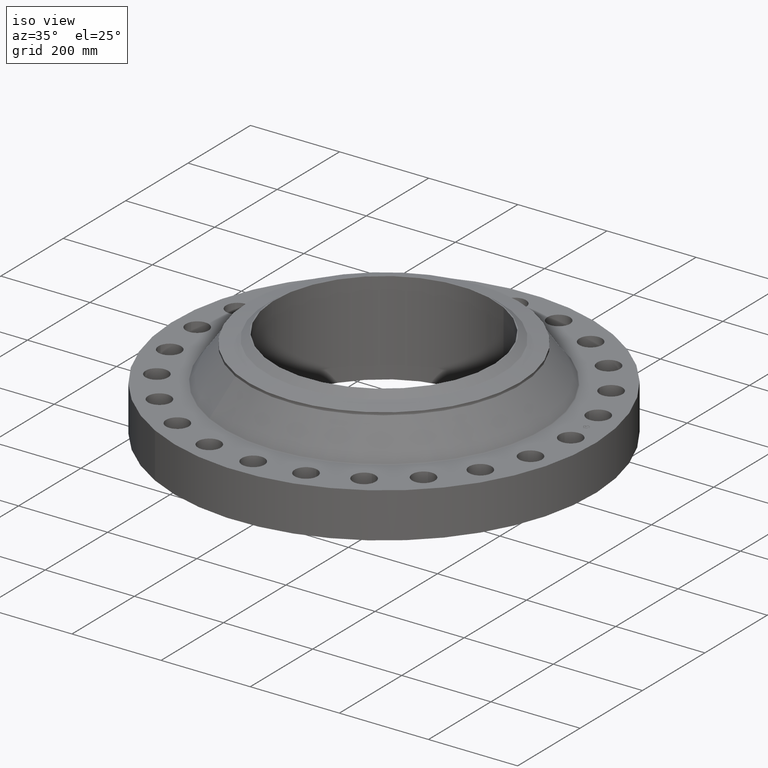
[diagram: clean part render]
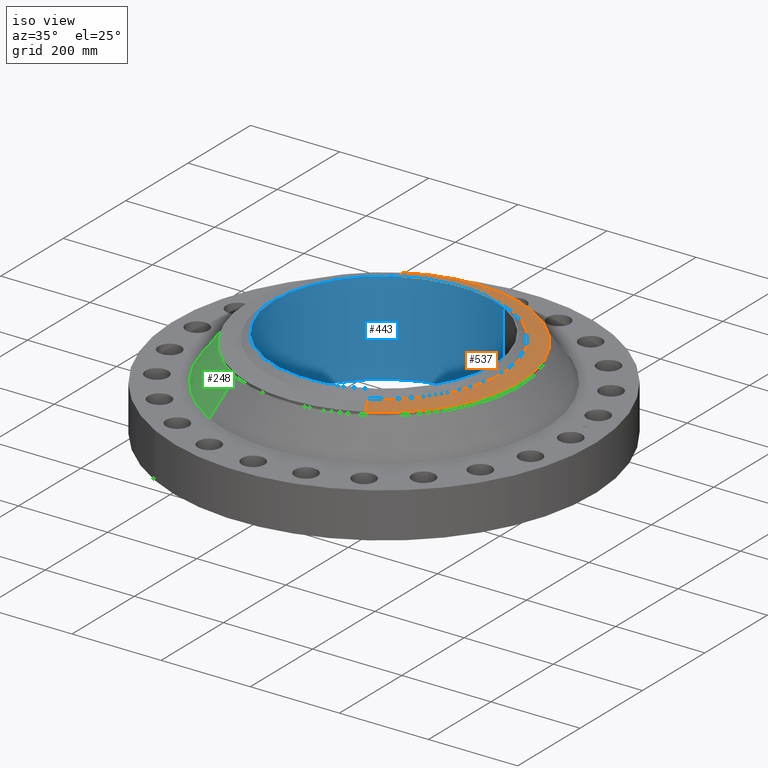
[diagram: same view with three faces highlighted in distinct colors, each labeled with its STEP entity id]
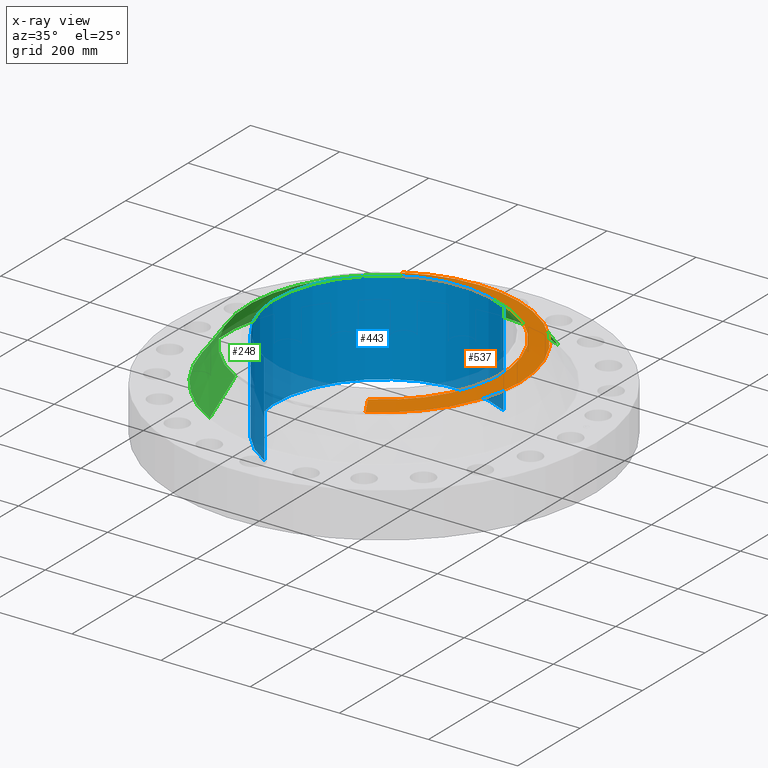
[diagram: x-ray of the same camera — body ghosted, the three highlighted faces saturated]
A machine part, iso view with three faces highlighted in distinct colors.
The next image is the same camera in x-ray (body ghosted, the three faces saturated) — at least one of them is partly hidden behind the body in this view.
Their STEP definitions:

[orange] entity #537 — the highlighted conical surface has half-angle 80 deg.
#270=AXIS2_PLACEMENT_3D('Circle Axis2P3D',#268,#269,$) ;
#297=AXIS2_PLACEMENT_3D('Circle Axis2P3D',#295,#296,$) ;
#311=AXIS2_PLACEMENT_3D('Cone Axis2P3D',#308,#309,#310) ;
#480=AXIS2_PLACEMENT_3D('Circle Axis2P3D',#478,#479,$) ;
#265=CARTESIAN_POINT('Vertex',(5.75310646327,10.5309907427,7.20502238551)) ;
#268=CARTESIAN_POINT('Axis2P3D Location',(0.,0.,7.20502238551)) ;
#272=CARTESIAN_POINT('Vertex',(5.75310646327,-10.5309907427,7.20502238551)) ;
#292=CARTESIAN_POINT('Vertex',(-5.75310646327,10.5309907427,7.20502238551)) ;
#295=CARTESIAN_POINT('Axis2P3D Location',(0.,0.,7.20502238551)) ;
#308=CARTESIAN_POINT('Axis2P3D Location',(0.,0.,7.48141601925)) ;
#313=CARTESIAN_POINT('Line Origine',(5.37735521355,-9.84318269369,7.34321920238)) ;
#317=CARTESIAN_POINT('Vertex',(5.00160396383,-9.15537464465,7.48141601925)) ;
#324=CARTESIAN_POINT('Vertex',(-5.00160396383,9.15537464465,7.48141601925)) ;
#327=CARTESIAN_POINT('Line Origine',(-5.37735521355,9.84318269369,7.34321920238)) ;
#478=CARTESIAN_POINT('Axis2P3D Location',(0.,0.,7.48141601925)) ;
#269=DIRECTION('Axis2P3D Direction',(0.,0.,-0.0393700787402)) ;
#296=DIRECTION('Axis2P3D Direction',(0.,0.,-0.0393700787402)) ;
#309=DIRECTION('Axis2P3D Direction',(-0.,-0.,-0.0393700787402)) ;
#310=DIRECTION('Axis2P3D XDirection',(-0.0188750212049,0.0345504945626,0.)) ;
#314=DIRECTION('Vector Direction',(0.0185882672208,-0.0340255949157,-0.00683654242783)) ;
#328=DIRECTION('Vector Direction',(-0.0185882672208,0.0340255949157,-0.00683654242783)) ;
#479=DIRECTION('Axis2P3D Direction',(0.,0.,0.0393700787402)) ;
#315=VECTOR('Line Direction',#314,0.0393700787402) ;
#329=VECTOR('Line Direction',#328,0.0393700787402) ;
#531=ORIENTED_EDGE('',*,*,#331,.F.) ;
#532=ORIENTED_EDGE('',*,*,#482,.F.) ;
#533=ORIENTED_EDGE('',*,*,#319,.T.) ;
#534=ORIENTED_EDGE('',*,*,#274,.T.) ;
#535=ORIENTED_EDGE('',*,*,#299,.F.) ;
#537=ADVANCED_FACE('PartBody',(#536),#312,.T.) ;
#271=CIRCLE('generated circle',#270,12.) ;
#298=CIRCLE('generated circle',#297,12.) ;
#481=CIRCLE('generated circle',#480,10.43249381) ;
#312=CONICAL_SURFACE('Cone',#311,10.43249381,1.3962634016) ;
#274=EDGE_CURVE('',#273,#266,#271,.F.) ;
#299=EDGE_CURVE('',#293,#266,#298,.T.) ;
#319=EDGE_CURVE('',#318,#273,#316,.T.) ;
#331=EDGE_CURVE('',#325,#293,#330,.T.) ;
#482=EDGE_CURVE('',#318,#325,#481,.T.) ;
#530=EDGE_LOOP('',(#531,#532,#533,#534,#535)) ;
#536=FACE_OUTER_BOUND('',#530,.T.) ;
#316=LINE('Line',#313,#315) ;
#330=LINE('Line',#327,#329) ;
#266=VERTEX_POINT('',#265) ;
#273=VERTEX_POINT('',#272) ;
#293=VERTEX_POINT('',#292) ;
#318=VERTEX_POINT('',#317) ;
#325=VERTEX_POINT('',#324) ;

[blue] entity #443 — the highlighted cylindrical surface (partial cylindrical patch) has radius 245.262 mm, axis along (0, 0, -1).
#365=AXIS2_PLACEMENT_3D('Circle Axis2P3D',#363,#364,$) ;
#416=AXIS2_PLACEMENT_3D('Cylinder Axis2P3D',#413,#414,#415) ;
#427=AXIS2_PLACEMENT_3D('Circle Axis2P3D',#425,#426,$) ;
#363=CARTESIAN_POINT('Axis2P3D Location',(0.,0.,8.00000000003)) ;
#367=CARTESIAN_POINT('Vertex',(-4.62933300078,-8.47393721765,8.00000000003)) ;
#369=CARTESIAN_POINT('Vertex',(4.62933300078,8.47393721765,8.00000000003)) ;
#413=CARTESIAN_POINT('Axis2P3D Location',(0.,0.,3.87500000002)) ;
#418=CARTESIAN_POINT('Line Origine',(-4.62933300078,-8.47393721765,3.87500000002)) ;
#422=CARTESIAN_POINT('Vertex',(-4.62933300078,-8.47393721765,-0.250000000001)) ;
#425=CARTESIAN_POINT('Axis2P3D Location',(0.,0.,-0.250000000001)) ;
#429=CARTESIAN_POINT('Vertex',(4.62933300078,8.47393721765,-0.250000000001)) ;
#432=CARTESIAN_POINT('Line Origine',(4.62933300078,8.47393721765,3.87500000002)) ;
#364=DIRECTION('Axis2P3D Direction',(0.,0.,-0.0393700787402)) ;
#414=DIRECTION('Axis2P3D Direction',(0.,0.,-0.0393700787402)) ;
#415=DIRECTION('Axis2P3D XDirection',(0.0188750212049,0.0345504945626,0.)) ;
#419=DIRECTION('Vector Direction',(0.,0.,-0.0393700787402)) ;
#426=DIRECTION('Axis2P3D Direction',(0.,0.,-0.0393700787402)) ;
#433=DIRECTION('Vector Direction',(0.,0.,-0.0393700787402)) ;
#420=VECTOR('Line Direction',#419,0.0393700787402) ;
#434=VECTOR('Line Direction',#433,0.0393700787402) ;
#438=ORIENTED_EDGE('',*,*,#371,.F.) ;
#439=ORIENTED_EDGE('',*,*,#424,.T.) ;
#440=ORIENTED_EDGE('',*,*,#431,.T.) ;
#441=ORIENTED_EDGE('',*,*,#436,.F.) ;
#443=ADVANCED_FACE('PartBody',(#442),#417,.F.) ;
#366=CIRCLE('generated circle',#365,9.65600000004) ;
#428=CIRCLE('generated circle',#427,9.65600000004) ;
#417=CYLINDRICAL_SURFACE('generated cylinder',#416,9.65600000004) ;
#371=EDGE_CURVE('',#368,#370,#366,.T.) ;
#424=EDGE_CURVE('',#368,#423,#421,.T.) ;
#431=EDGE_CURVE('',#423,#430,#428,.T.) ;
#436=EDGE_CURVE('',#370,#430,#435,.T.) ;
#437=EDGE_LOOP('',(#438,#439,#440,#441)) ;
#442=FACE_OUTER_BOUND('',#437,.T.) ;
#421=LINE('Line',#418,#420) ;
#435=LINE('Line',#432,#434) ;
#368=VERTEX_POINT('',#367) ;
#370=VERTEX_POINT('',#369) ;
#423=VERTEX_POINT('',#422) ;
#430=VERTEX_POINT('',#429) ;

[green] entity #248 — the highlighted conical surface has half-angle 35.594 deg.
#196=AXIS2_PLACEMENT_3D('Circle Axis2P3D',#194,#195,$) ;
#209=AXIS2_PLACEMENT_3D('Cone Axis2P3D',#206,#207,#208) ;
#239=AXIS2_PLACEMENT_3D('Circle Axis2P3D',#237,#238,$) ;
#167=CARTESIAN_POINT('Vertex',(6.75467442189,12.3643485934,4.05015509672)) ;
#174=CARTESIAN_POINT('Vertex',(-6.75467442189,-12.3643485934,4.05015509672)) ;
#194=CARTESIAN_POINT('Axis2P3D Location',(0.,0.,4.05015509672)) ;
#206=CARTESIAN_POINT('Axis2P3D Location',(0.,0.,6.96880191307)) ;
#211=CARTESIAN_POINT('Line Origine',(6.25389044258,11.4476696681,5.50947850489)) ;
#215=CARTESIAN_POINT('Vertex',(5.75310646327,10.5309907427,6.96880191307)) ;
#222=CARTESIAN_POINT('Vertex',(-5.75310646327,-10.5309907427,6.96880191307)) ;
#225=CARTESIAN_POINT('Line Origine',(-6.25389044258,-11.4476696681,5.50947850489)) ;
#237=CARTESIAN_POINT('Axis2P3D Location',(0.,0.,6.96880191307)) ;
#195=DIRECTION('Axis2P3D Direction',(0.,0.,-0.0393700787402)) ;
#207=DIRECTION('Axis2P3D Direction',(0.,0.,-0.0393700787402)) ;
#208=DIRECTION('Axis2P3D XDirection',(-0.0188750212049,-0.0345504945626,0.)) ;
#212=DIRECTION('Vector Direction',(0.0109860335897,0.0201097995963,-0.0320141550906)) ;
#226=DIRECTION('Vector Direction',(-0.0109860335897,-0.0201097995963,-0.0320141550906)) ;
#238=DIRECTION('Axis2P3D Direction',(0.,0.,-0.0393700787402)) ;
#213=VECTOR('Line Direction',#212,0.0393700787402) ;
#227=VECTOR('Line Direction',#226,0.0393700787402) ;
#243=ORIENTED_EDGE('',*,*,#198,.F.) ;
#244=ORIENTED_EDGE('',*,*,#229,.T.) ;
#245=ORIENTED_EDGE('',*,*,#241,.T.) ;
#246=ORIENTED_EDGE('',*,*,#217,.F.) ;
#248=ADVANCED_FACE('PartBody',(#247),#210,.T.) ;
#197=CIRCLE('generated circle',#196,14.0891001375) ;
#240=CIRCLE('generated circle',#239,12.) ;
#210=CONICAL_SURFACE('Cone',#209,12.,0.621236234358) ;
#198=EDGE_CURVE('',#175,#168,#197,.T.) ;
#217=EDGE_CURVE('',#168,#216,#214,.F.) ;
#229=EDGE_CURVE('',#175,#223,#228,.F.) ;
#241=EDGE_CURVE('',#223,#216,#240,.T.) ;
#242=EDGE_LOOP('',(#243,#244,#245,#246)) ;
#247=FACE_OUTER_BOUND('',#242,.T.) ;
#214=LINE('Line',#211,#213) ;
#228=LINE('Line',#225,#227) ;
#168=VERTEX_POINT('',#167) ;
#175=VERTEX_POINT('',#174) ;
#216=VERTEX_POINT('',#215) ;
#223=VERTEX_POINT('',#222) ;